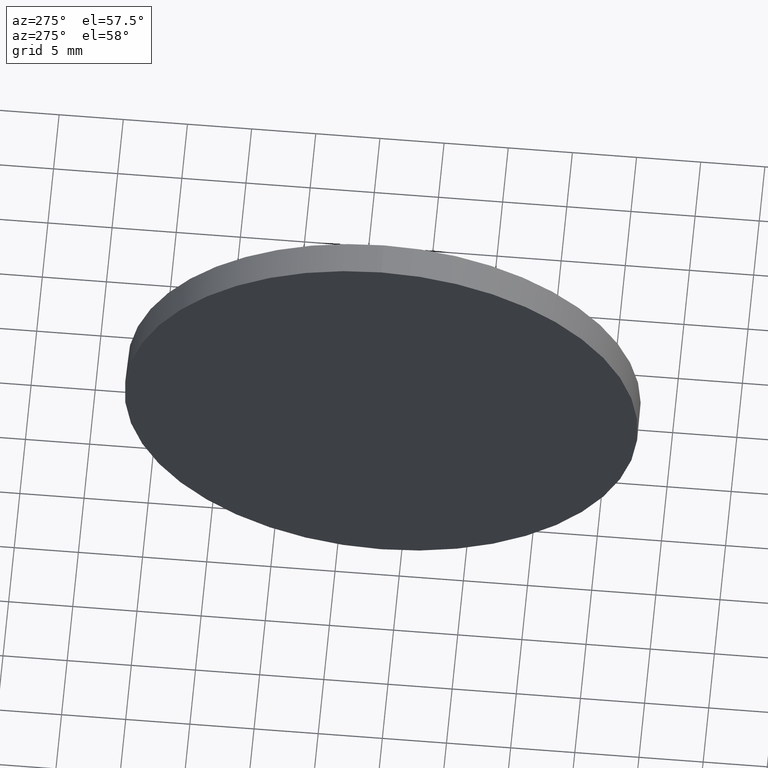
[diagram: clean part render]
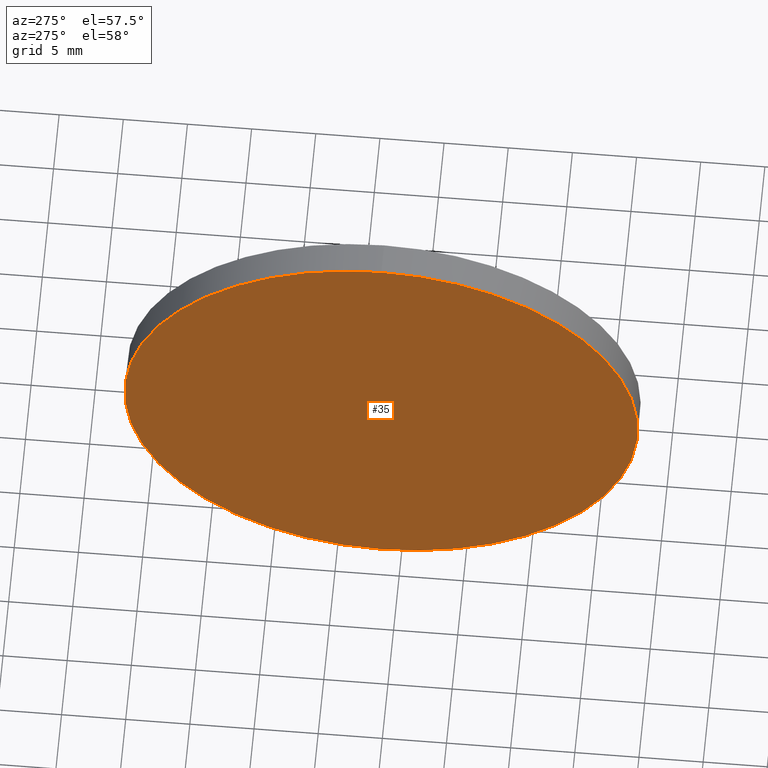
[diagram: same view with one face highlighted and labeled with its STEP entity id]
A machine part, auxiliary view. The second image highlights one B-rep face of the part: STEP entity #35.
In plain terms, the highlighted planar face has unit normal (1, 0, 0).
Its self-contained STEP definition (entity closure, byte-faithful):
#7 = DIRECTION ( 'NONE',  ( -1.000000000000000000, -0.0000000000000000000, -0.0000000000000000000 ) ) ;
#8 = CARTESIAN_POINT ( 'NONE',  ( 456.7914818533709500, 106.5576231808466900, -19.99999999999998900 ) ) ;
#35 = ADVANCED_FACE ( 'NONE', ( #152 ), #42, .F. ) ;
#42 = PLANE ( 'NONE',  #133 ) ;
#47 = ORIENTED_EDGE ( 'NONE', *, *, #137, .T. ) ;
#71 = CARTESIAN_POINT ( 'NONE',  ( 456.7914818533709500, 106.5576231808466900, 0.0000000000000000000 ) ) ;
#72 = EDGE_LOOP ( 'NONE', ( #136, #47 ) ) ;
#73 = DIRECTION ( 'NONE',  ( 1.000000000000000000, 0.0000000000000000000, 0.0000000000000000000 ) ) ;
#75 = CARTESIAN_POINT ( 'NONE',  ( 456.7914818533709500, 106.5576231808466900, 19.99999999999998900 ) ) ;
#89 = DIRECTION ( 'NONE',  ( 0.0000000000000000000, 0.0000000000000000000, 1.000000000000000000 ) ) ;
#94 = DIRECTION ( 'NONE',  ( -1.000000000000000000, -0.0000000000000000000, -0.0000000000000000000 ) ) ;
#98 = AXIS2_PLACEMENT_3D ( 'NONE', #154, #94, #142 ) ;
#108 = CARTESIAN_POINT ( 'NONE',  ( 456.7914818533709500, 106.5576231808466900, 0.0000000000000000000 ) ) ;
#113 = AXIS2_PLACEMENT_3D ( 'NONE', #108, #7, #89 ) ;
#118 = CIRCLE ( 'NONE', #113, 19.99999999999998900 ) ;
#123 = EDGE_CURVE ( 'NONE', #146, #140, #118, .T. ) ;
#133 = AXIS2_PLACEMENT_3D ( 'NONE', #71, #73, #159 ) ;
#136 = ORIENTED_EDGE ( 'NONE', *, *, #123, .T. ) ;
#137 = EDGE_CURVE ( 'NONE', #140, #146, #155, .T. ) ;
#140 = VERTEX_POINT ( 'NONE', #8 ) ;
#142 = DIRECTION ( 'NONE',  ( 0.0000000000000000000, 0.0000000000000000000, 1.000000000000000000 ) ) ;
#146 = VERTEX_POINT ( 'NONE', #75 ) ;
#152 = FACE_OUTER_BOUND ( 'NONE', #72, .T. ) ;
#154 = CARTESIAN_POINT ( 'NONE',  ( 456.7914818533709500, 106.5576231808466900, 0.0000000000000000000 ) ) ;
#155 = CIRCLE ( 'NONE', #98, 19.99999999999998900 ) ;
#159 = DIRECTION ( 'NONE',  ( 0.0000000000000000000, 0.0000000000000000000, -1.000000000000000000 ) ) ;